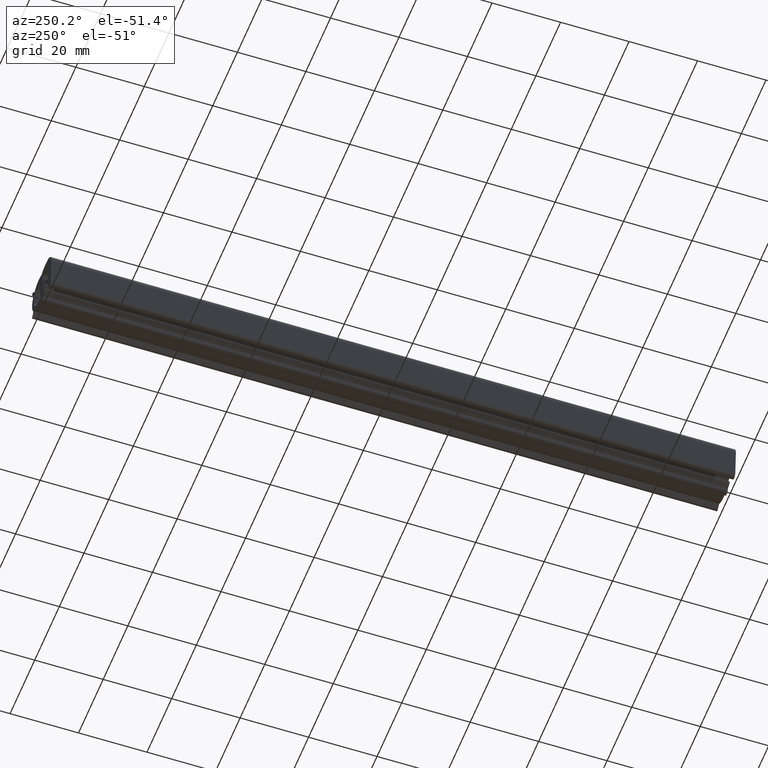
[diagram: clean part render]
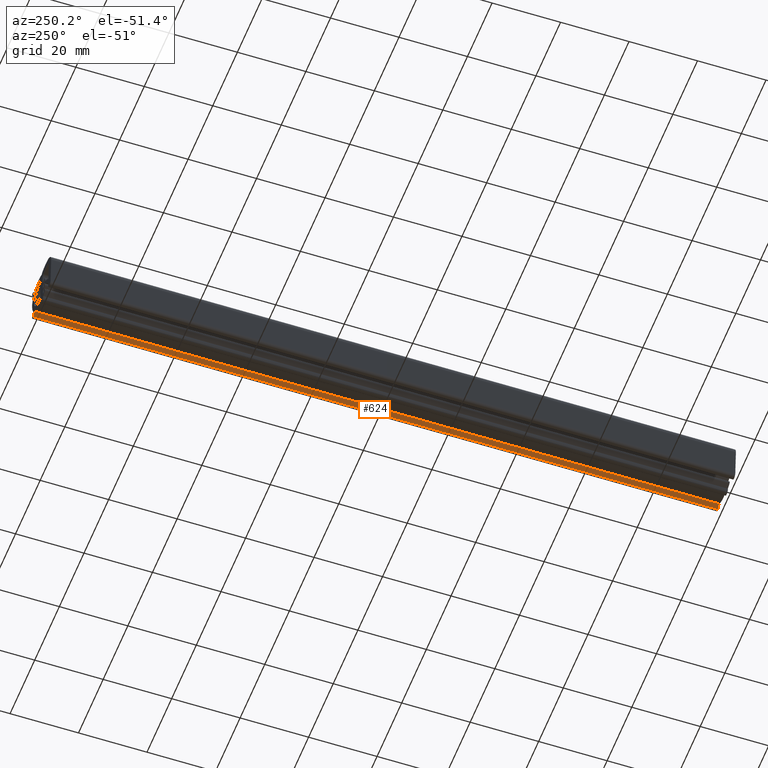
[diagram: same view with one face highlighted and labeled with its STEP entity id]
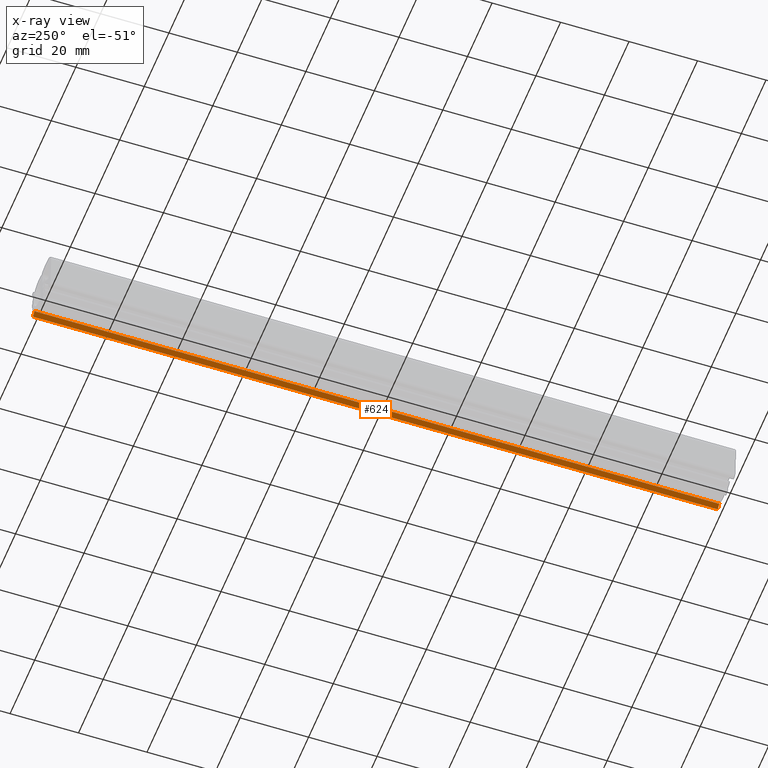
[diagram: x-ray of the same camera — body ghosted, the highlighted face saturated]
A machine part, auxiliary view. The second image highlights one B-rep face of the part: STEP entity #624.
The next image is the same camera in x-ray: the body ghosted, the highlighted face saturated — about 0% of this face is hidden behind the body in this view.
In plain terms, the highlighted face is a freeform B-spline surface patch.
Its self-contained STEP definition (entity closure, byte-faithful):
#107=CARTESIAN_POINT('',(9.019430405811720,0.0,-10.072536361922239));
#108=VERTEX_POINT('',#107);
#122=CARTESIAN_POINT('',(10.146446609407921,0.0,-11.199553390595300));
#123=VERTEX_POINT('',#122);
#124=CARTESIAN_POINT('',(9.019430405811720,0.0,-10.072536361922239));
#125=CARTESIAN_POINT('',(10.146446609407921,0.0,-11.199553390595300));
#126=QUASI_UNIFORM_CURVE('',1,(#124,#125),.UNSPECIFIED.,.F.,.U.);
#127=EDGE_CURVE('',#108,#123,#126,.T.);
#341=CARTESIAN_POINT('',(10.146446609407921,200.0,-11.199553390595300));
#342=VERTEX_POINT('',#341);
#360=CARTESIAN_POINT('',(9.019430405811720,200.0,-10.072536361922239));
#361=VERTEX_POINT('',#360);
#362=CARTESIAN_POINT('',(9.019430405811720,200.0,-10.072536361922239));
#363=CARTESIAN_POINT('',(10.146446609407921,200.0,-11.199553390595300));
#364=QUASI_UNIFORM_CURVE('',1,(#362,#363),.UNSPECIFIED.,.F.,.U.);
#365=EDGE_CURVE('',#361,#342,#364,.T.);
#599=CARTESIAN_POINT('',(10.146446609407921,200.0,-11.199553390595300));
#600=CARTESIAN_POINT('',(10.146446609407921,0.0,-11.199553390595300));
#601=QUASI_UNIFORM_CURVE('',1,(#599,#600),.UNSPECIFIED.,.F.,.U.);
#602=EDGE_CURVE('',#342,#123,#601,.T.);
#609=CARTESIAN_POINT('',(10.202740922504960,-9.989999612361183,-11.255847744904830));
#610=CARTESIAN_POINT('',(8.963135840806999,-9.989999612361183,-10.016241755704710));
#611=CARTESIAN_POINT('',(10.202740922504960,209.990004976779200,-11.255847744904830));
#612=CARTESIAN_POINT('',(8.963135840806999,209.990004976779200,-10.016241755704710));
#613=B_SPLINE_SURFACE_WITH_KNOTS('',1,1,((#609,#611),(#610,#612)),.UNSPECIFIED.,.F.,.F.,.U.,(2,2),(2,2),(0.041708441489562,0.958291744774952),(0.0,219.980004589140410),.UNSPECIFIED.);
#614=ORIENTED_EDGE('',*,*,#127,.F.);
#615=CARTESIAN_POINT('',(9.019430405811720,200.0,-10.072536361922239));
#616=CARTESIAN_POINT('',(9.019430405811720,0.0,-10.072536361922239));
#617=QUASI_UNIFORM_CURVE('',1,(#615,#616),.UNSPECIFIED.,.F.,.U.);
#618=EDGE_CURVE('',#361,#108,#617,.T.);
#619=ORIENTED_EDGE('',*,*,#618,.F.);
#620=ORIENTED_EDGE('',*,*,#365,.T.);
#621=ORIENTED_EDGE('',*,*,#602,.T.);
#622=EDGE_LOOP('',(#614,#619,#620,#621));
#623=FACE_OUTER_BOUND('',#622,.T.);
#624=ADVANCED_FACE('',(#623),#613,.T.);